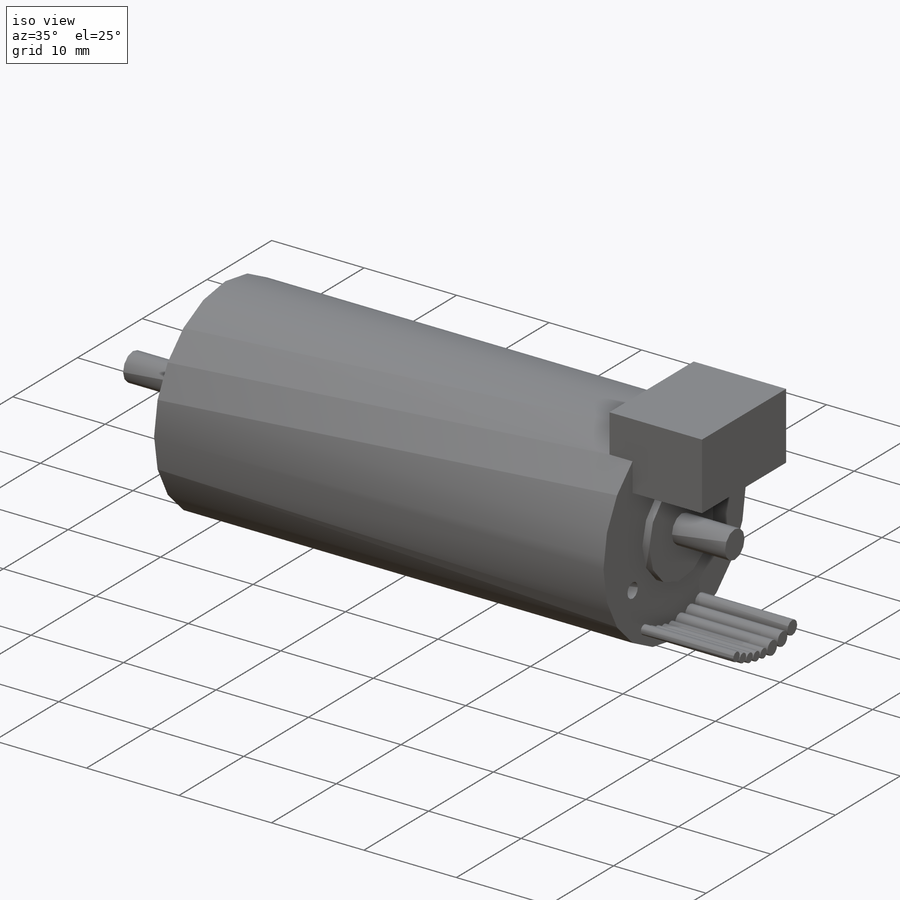
[diagram: iso view]
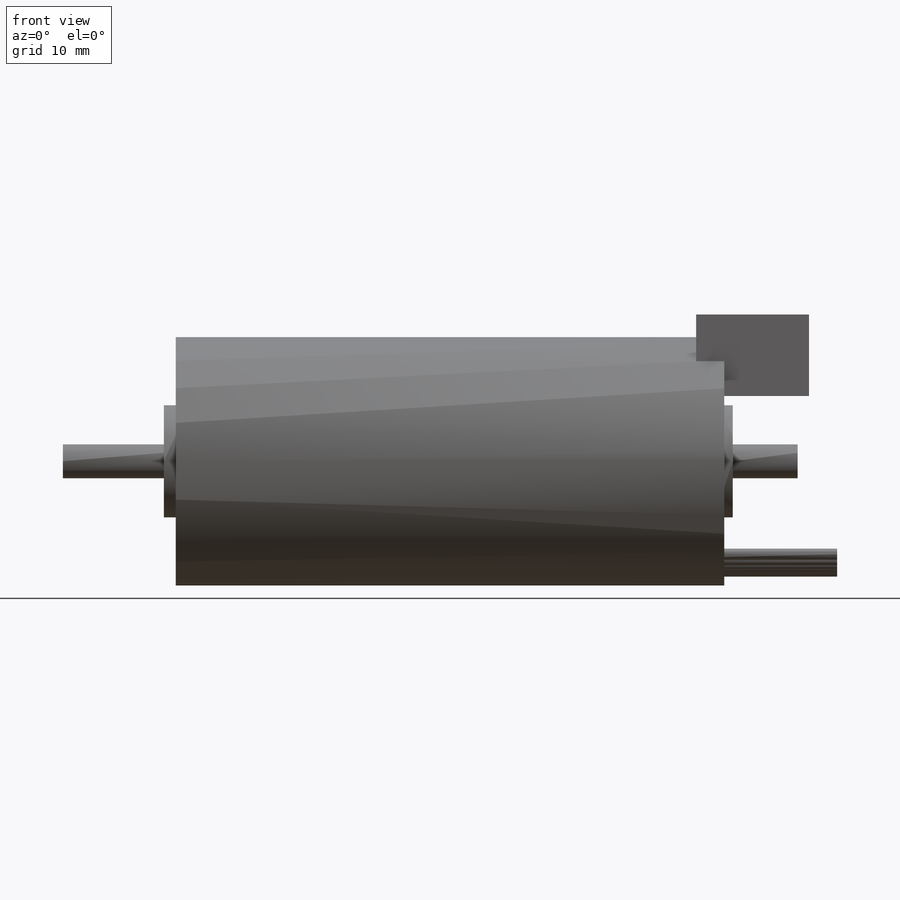
[diagram: front view]
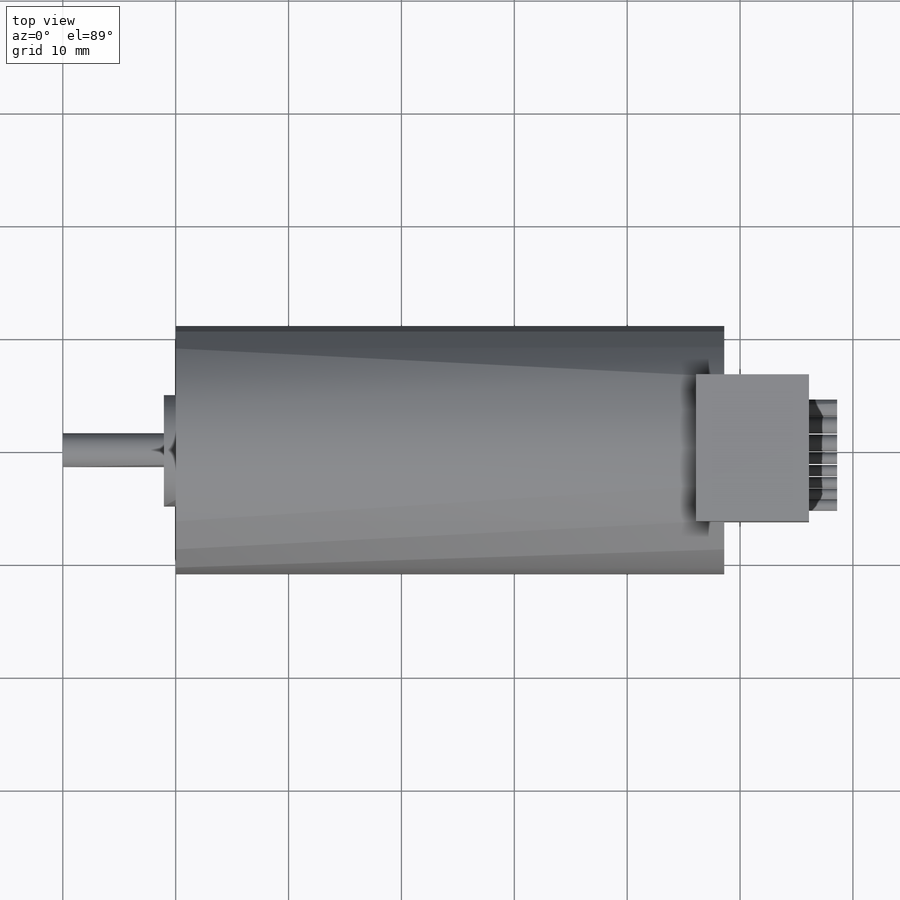
[diagram: top view]
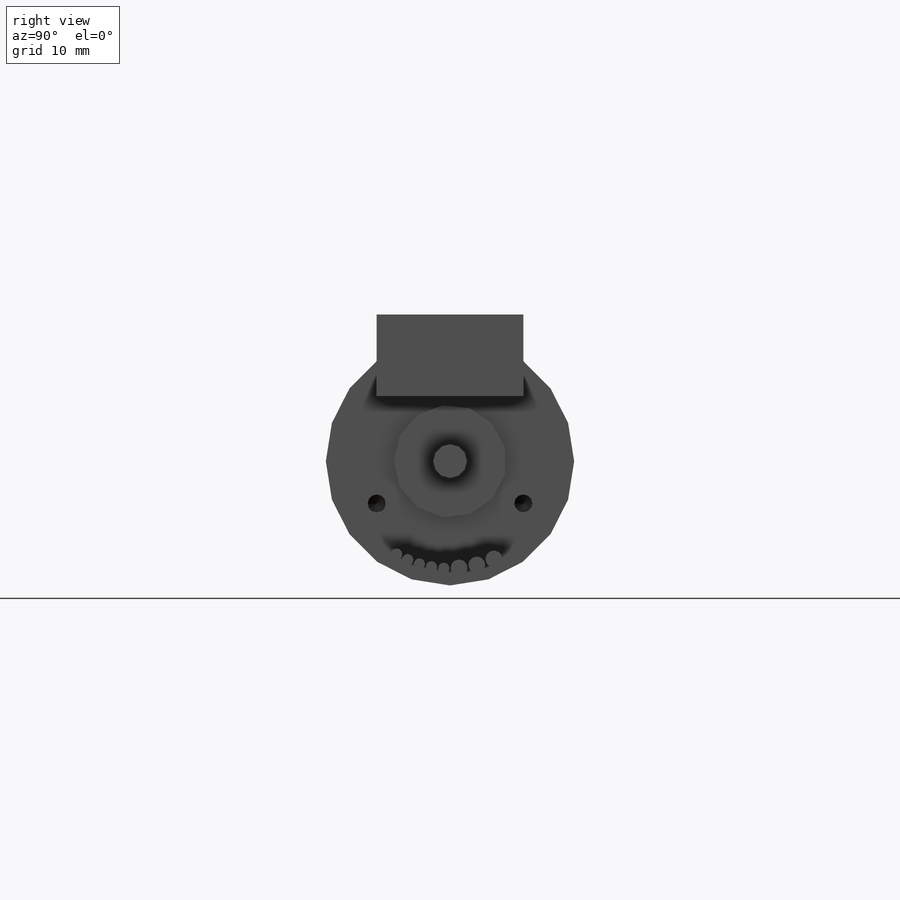
[diagram: right view]
SOLIDWORKS PART (.sldprt)
format: sldprt  version: not decoded by parser v0  size: 271,872 bytes
history: native  units: mm
features: sketch x6, extrude x2, material x1, revolve x1, hole x1, plane x1 (+12 scaffold rows collapsed)
feature tree (24):
  scaffold x12  (default folders/planes/origin — collapsed)
  material  "Material <not specified>"
  sketch  "Sketch2"  dims[D1=5.0mm D2=1.05mm D3=10.0mm D4=1.5mm D5=6.5mm D6=1.5mm D7=0.75mm D8=11.0mm D9=48.6mm D10=5.0mm]
  revolve  "Revolve1"  Angle=360deg
  sketch  "Sketch3"  dims[D1=15.0mm D2=3.0]
  hole  "M2 Tapped Hole1"  Diameter=1.6mm Depth=3mm
  sketch  "3DSketch1"
  sketch  "Sketch4"  dims[hole-wizard template sketch: 34 standard entries collapsed; hole parameters kept: c6.Tap Drill Dia.=1.6mm c6.Tap Drill Depth=3.0mm c7.D3=~14.816244mm]
  sketch  "Sketch5"  dims[c1.D1=19.0mm c1.D2=1.5mm c1.D3=1.0mm c1.D4=1.0mm c1.D5=1.0mm c1.D6=1.0mm c1.D7=1.0mm c1.D8=1.5mm c1.D9=1.5mm c1.D10=1.5mm c2.D4=1.1mm c2.D5=1.1mm c2.D6=1.1mm c2.D7=1.1mm c2.D8=1.35mm c2.D9=1.6mm c2.D10=1.6mm]
  extrude  "Boss-Extrude1"  Depth=10mm
  plane  "Plane1"  Offset=2.5mm
  sketch  "Sketch6"  dims[D1=13.0mm D2=24.0mm]
  extrude  "Boss-Extrude2"  Depth=10mm
decode coverage: 9 of 10 modeling features carry decoded parameters
note: ~ marks probable driven/reference dimensions
note: suppression state not decoded; provenance and decode notes live in map.json
